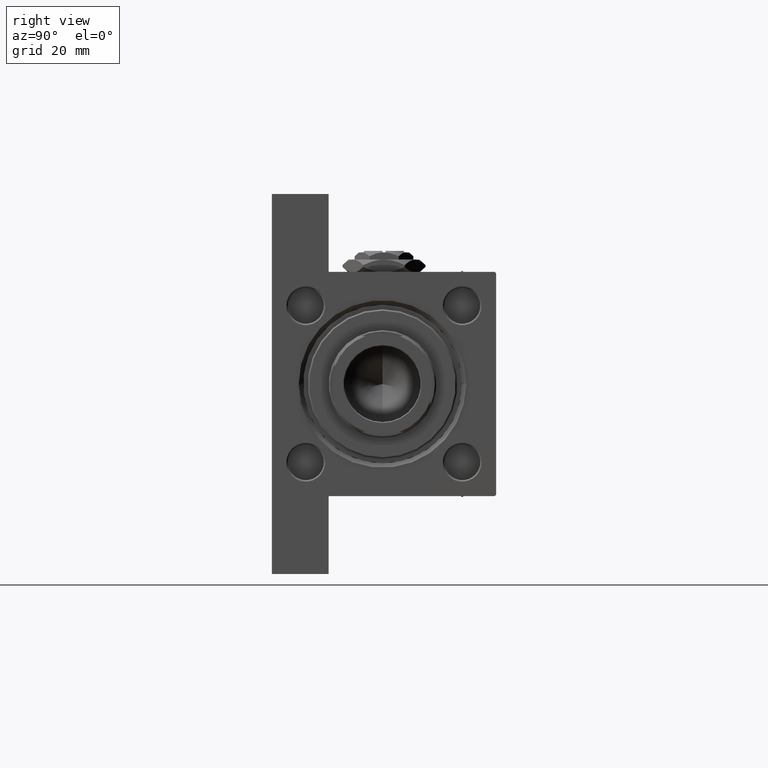
[diagram: clean part render]
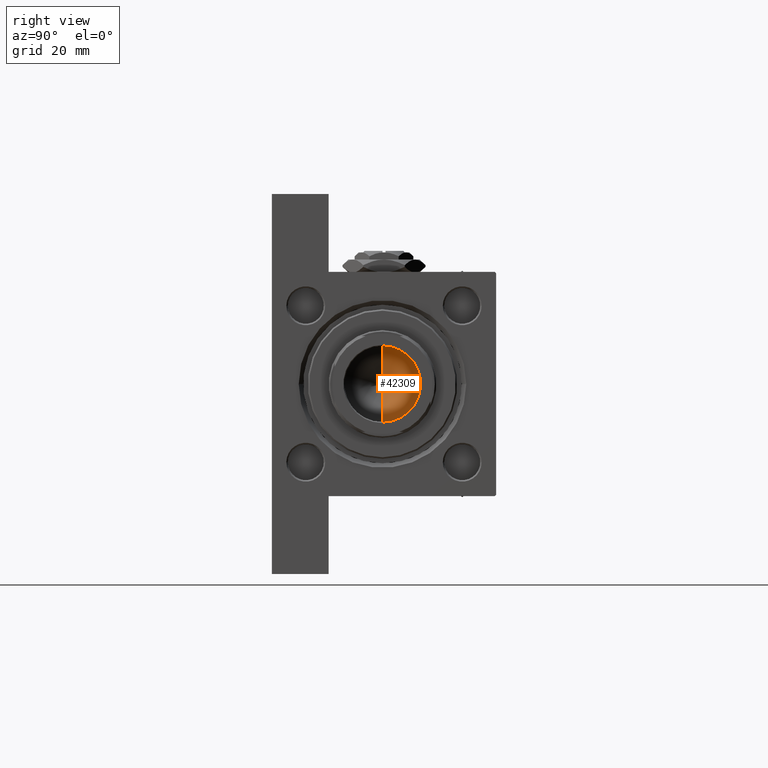
[diagram: same view with one face highlighted and labeled with its STEP entity id]
A machine part, right view. The second image highlights one B-rep face of the part: STEP entity #42309.
In plain terms, the highlighted conical surface has half-angle 59 deg.
Its self-contained STEP definition (entity closure, byte-faithful):
#2429 = AXIS2_PLACEMENT_3D ( 'NONE', #39625, #4923, #39378 ) ;
#4923 = DIRECTION ( 'NONE',  ( -0.000000000000000000, -0.000000000000000000, 1.000000000000000000 ) ) ;
#8559 = LINE ( 'NONE', #34974, #45316 ) ;
#8967 = DIRECTION ( 'NONE',  ( 1.000000000000000000, 0.000000000000000000, 0.000000000000000000 ) ) ;
#10069 = ORIENTED_EDGE ( 'NONE', *, *, #23361, .T. ) ;
#10806 = ORIENTED_EDGE ( 'NONE', *, *, #34943, .F. ) ;
#11349 = VECTOR ( 'NONE', #11542, 1000.000000000000000 ) ;
#11542 = DIRECTION ( 'NONE',  ( -0.8571673007021117785, 1.049727191138617956E-16, 0.5150380749100550437 ) ) ;
#12216 = CARTESIAN_POINT ( 'NONE',  ( -12.74999999999998934, 1.561424668912873928E-15, 97.00000000000001421 ) ) ;
#12744 = CARTESIAN_POINT ( 'NONE',  ( 0.000000000000000000, 0.000000000000000000, 97.00000000000001421 ) ) ;
#16614 = VERTEX_POINT ( 'NONE', #32882 ) ;
#19168 = EDGE_LOOP ( 'NONE', ( #10806, #10069, #35133 ) ) ;
#23361 = EDGE_CURVE ( 'NONE', #16614, #39916, #34155, .T. ) ;
#32816 = CONICAL_SURFACE ( 'NONE', #44048, 12.74999999999998934, 1.029744258676653423 ) ;
#32882 = CARTESIAN_POINT ( 'NONE',  ( -1.410643066818227497E-14, 0.000000000000000000, 89.33902710739862130 ) ) ;
#33999 = CARTESIAN_POINT ( 'NONE',  ( 12.74999999999998934, 0.000000000000000000, 97.00000000000001421 ) ) ;
#34155 = LINE ( 'NONE', #38684, #11349 ) ;
#34943 = EDGE_CURVE ( 'NONE', #16614, #47633, #8559, .T. ) ;
#34974 = CARTESIAN_POINT ( 'NONE',  ( 12.74999999999998934, 0.000000000000000000, 97.00000000000001421 ) ) ;
#35133 = ORIENTED_EDGE ( 'NONE', *, *, #48232, .T. ) ;
#38684 = CARTESIAN_POINT ( 'NONE',  ( -12.74999999999998934, 1.561424668912873928E-15, 97.00000000000001421 ) ) ;
#39378 = DIRECTION ( 'NONE',  ( 1.000000000000000000, 0.000000000000000000, 0.000000000000000000 ) ) ;
#39625 = CARTESIAN_POINT ( 'NONE',  ( 0.000000000000000000, 0.000000000000000000, 97.00000000000001421 ) ) ;
#39916 = VERTEX_POINT ( 'NONE', #12216 ) ;
#42309 = ADVANCED_FACE ( 'NONE', ( #47182 ), #32816, .F. ) ;
#43408 = DIRECTION ( 'NONE',  ( -0.000000000000000000, -0.000000000000000000, 1.000000000000000000 ) ) ;
#44048 = AXIS2_PLACEMENT_3D ( 'NONE', #12744, #43408, #8967 ) ;
#44147 = CIRCLE ( 'NONE', #2429, 12.74999999999998934 ) ;
#45316 = VECTOR ( 'NONE', #46295, 1000.000000000000000 ) ;
#46295 = DIRECTION ( 'NONE',  ( 0.8571673007021117785, 0.000000000000000000, 0.5150380749100550437 ) ) ;
#47182 = FACE_OUTER_BOUND ( 'NONE', #19168, .T. ) ;
#47633 = VERTEX_POINT ( 'NONE', #33999 ) ;
#48232 = EDGE_CURVE ( 'NONE', #39916, #47633, #44147, .T. ) ;